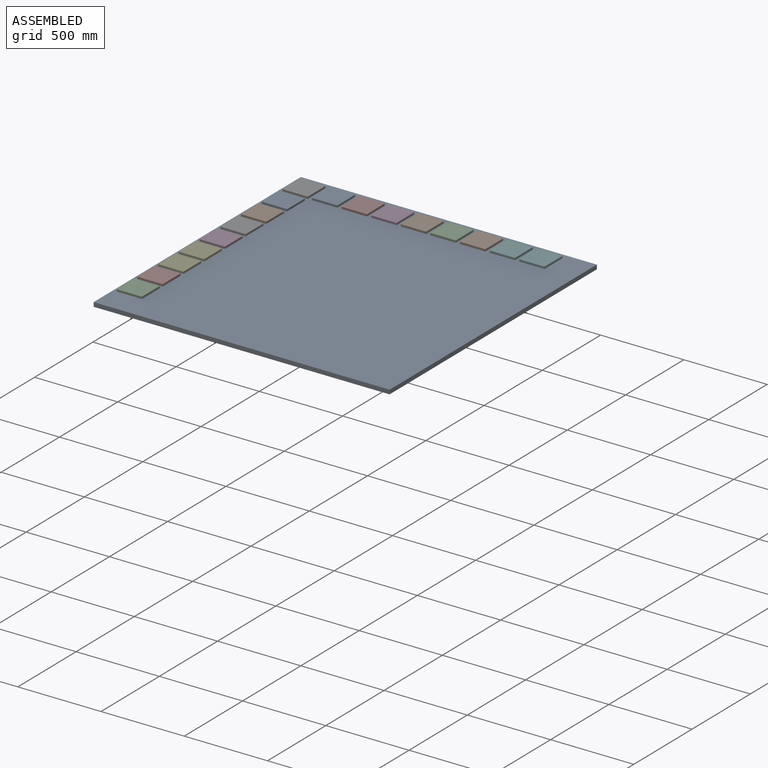
[diagram: assembled view]
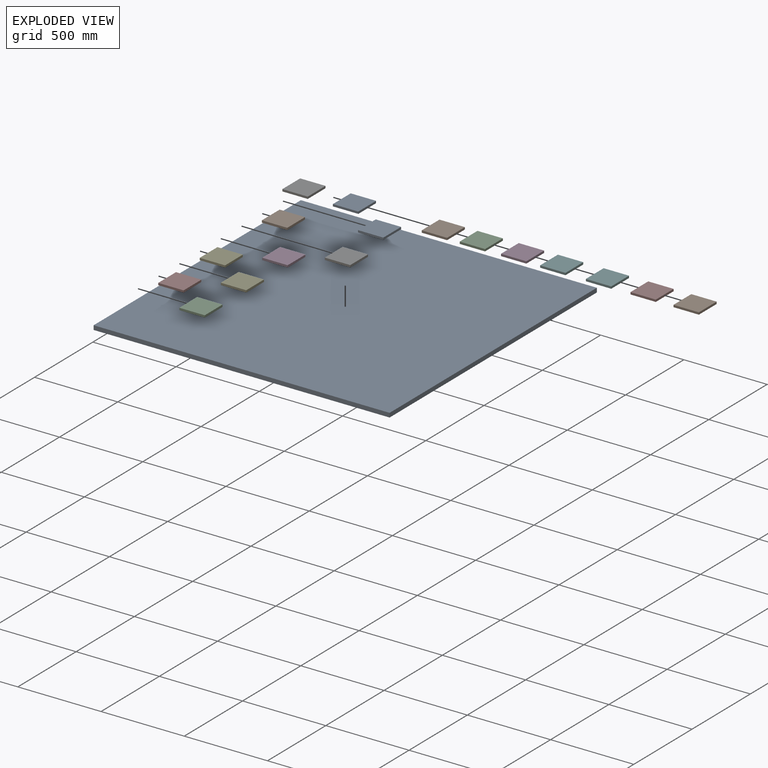
[diagram: exploded view]
GUIDED TOUR — MATED ASSEMBLY (Onshape document 28abea1aff2897cf7e7c4938, AutoMate assembly 28abea1aff2897cf7e7c4938_fbd6e8e1134ad09c63a7ca57_0e753900161d136d466df1c1_default)

This assembly has 18 components, labeled P0..P17 below (a component is one placed occurrence of a part; the same part can appear more than once), held together by 1 mate. A mate is a constraint between two components; its type names the relative motion it leaves free:
  PLANAR — leaves sliding in the plane through the listed point (normal = the listed direction) and rotation about that normal free.
Axis/direction vectors are unit vectors and 'through' points are millimeter coordinates, both in the assembly's world frame.

MATES
  1. PLANAR "Planar 1": P16 <-> P6, direction (0.000, 0.000, 1.000) through (-750.33, -47.35, 882.11) mm

ASSEMBLY ORDER
  1. P17 — the base component [order verified]
  2. P2 [order verified]
  3. P1 [order verified]
  4. P3 [order verified]
  5. P15 [order verified]
  6. P0 [order verified]
  7. P6 [order verified]
  8. P8 [order verified]
  9. P9 [order verified]
  10. P14 [order verified]
  11. P13 [order verified]
  12. P11 [order verified]
  13. P4 [order verified]
  14. P12 [order verified]
  15. P7 [order verified]
  16. P10 [order verified]
  17. P5 [order verified]
  18. P16 [order verified]
Order-tag legend:
  [order verified] — this step's position reverses a verified removal order: the component was checked to insert without passing through the ones already placed.

Of the 18 components, 18 carry the full construction recipe — the FeatureScript program that regenerates the part's solid from scratch; the rest are supplied as boundary geometry only.
Because this assembly has more than 12 components, the tour below covers the 12 most significant ones individually (every recipe-attached component first, then the largest by part volume), in assembly order; the remaining 6 are summarized together in a grouped section at the end.
Each toured component is shown spotlighted twice — in the assembled view, then in the exploded view, where a leader line traces a displaced component back to its assembled socket (saturated green if recipe-attached, orange if geometry-only; every other component desaturated gray) — followed by its recipe or geometry summary and the mates that hold it.
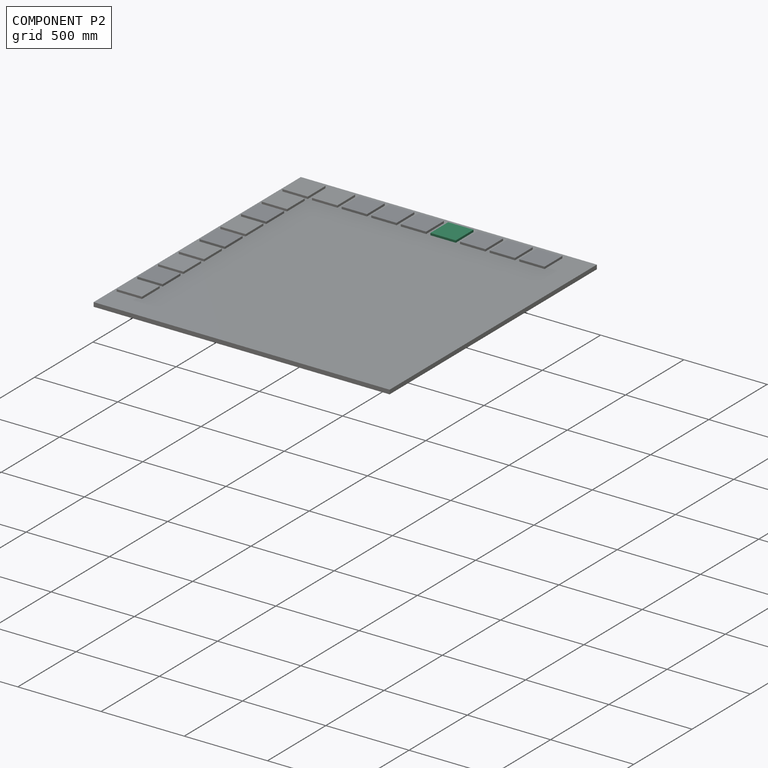
[diagram: component P2 — assembled]
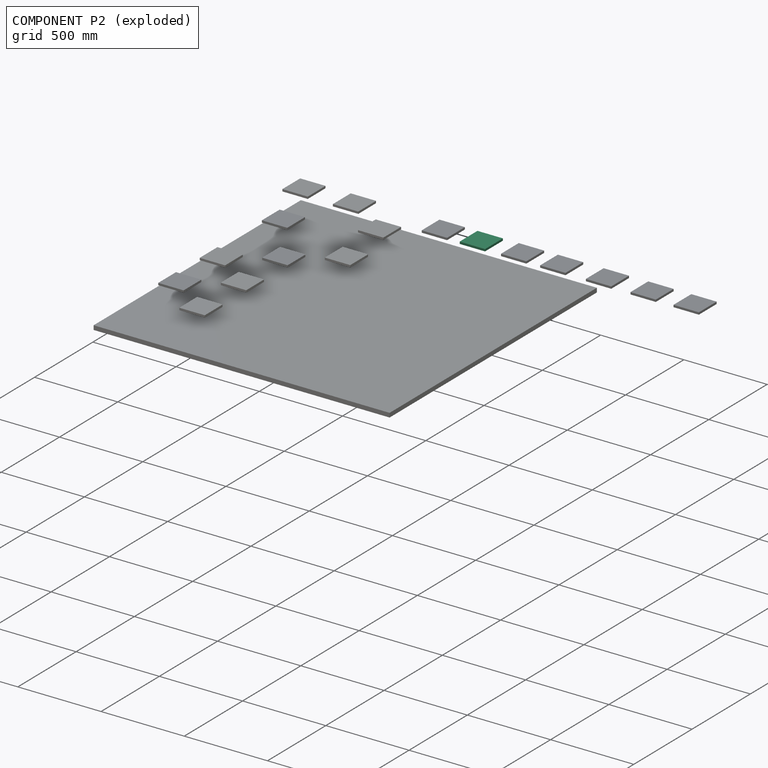
[diagram: component P2 — exploded]
COMPONENT P2 — same part as P0 (CADFS 00846062); its construction recipe is shown at P0.
Held by: no mates (free).
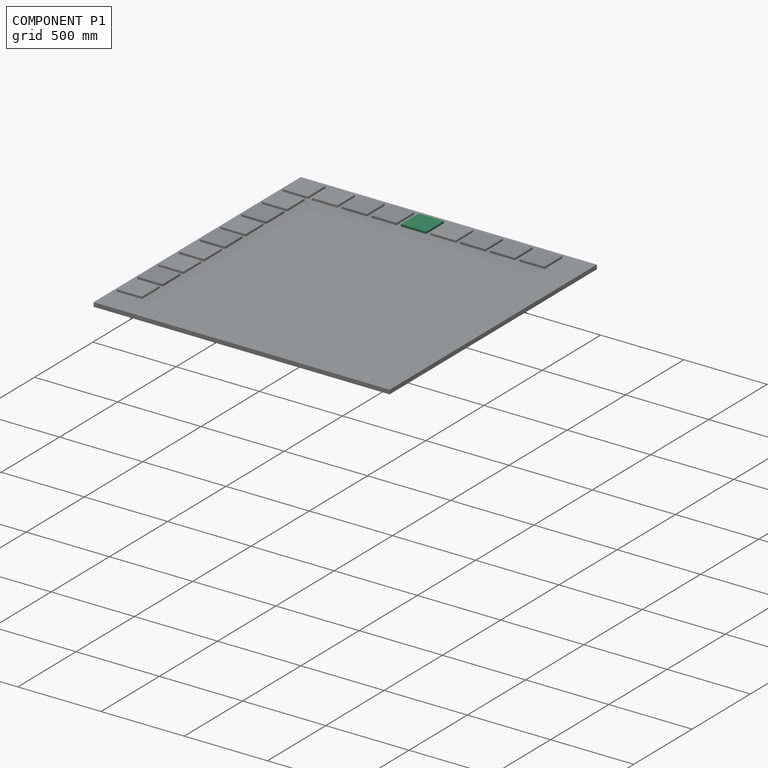
[diagram: component P1 — assembled]
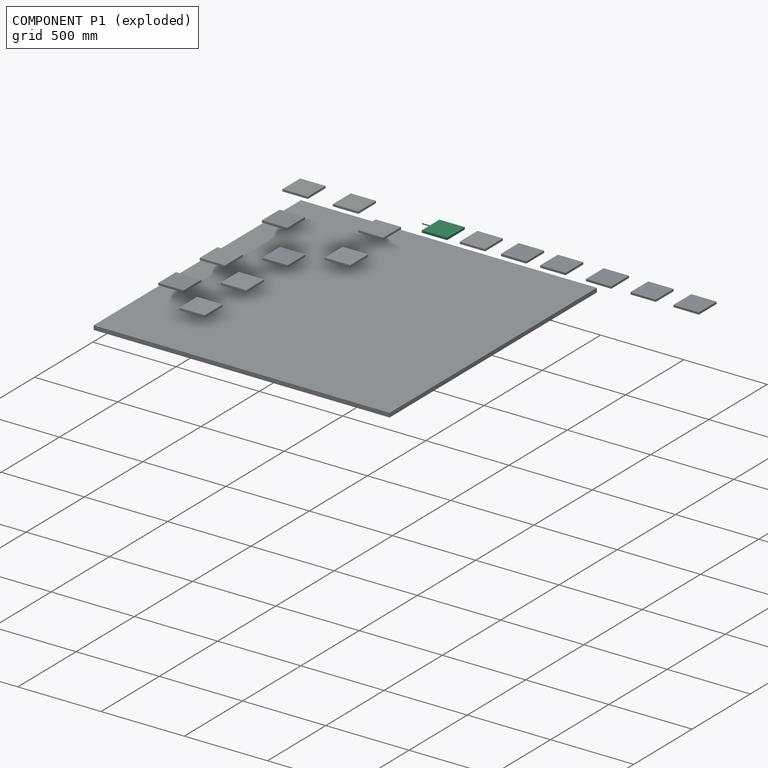
[diagram: component P1 — exploded]
COMPONENT P1 — same part as P0 (CADFS 00846062); its construction recipe is shown at P0.
Held by: no mates (free).
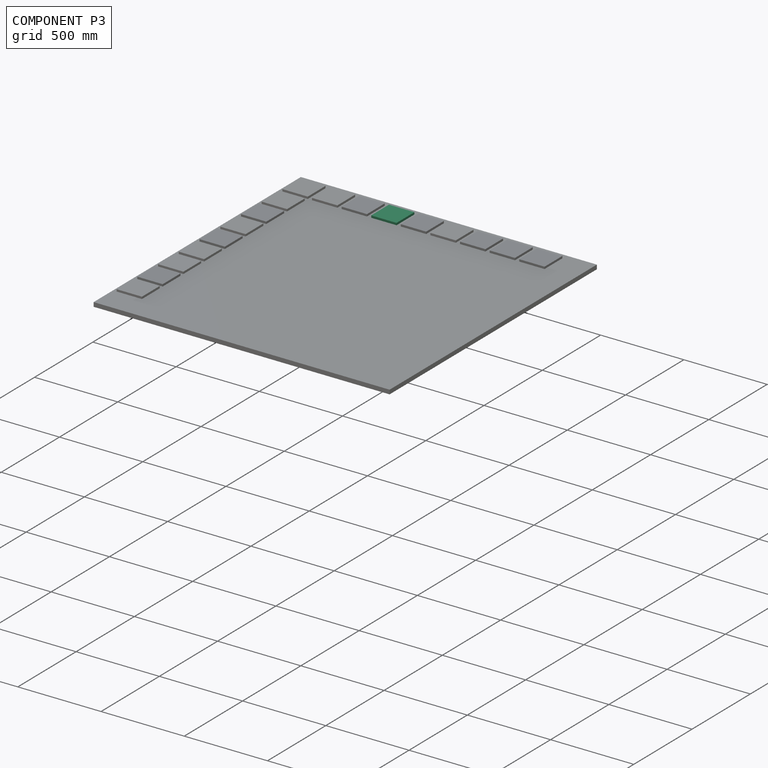
[diagram: component P3 — assembled]
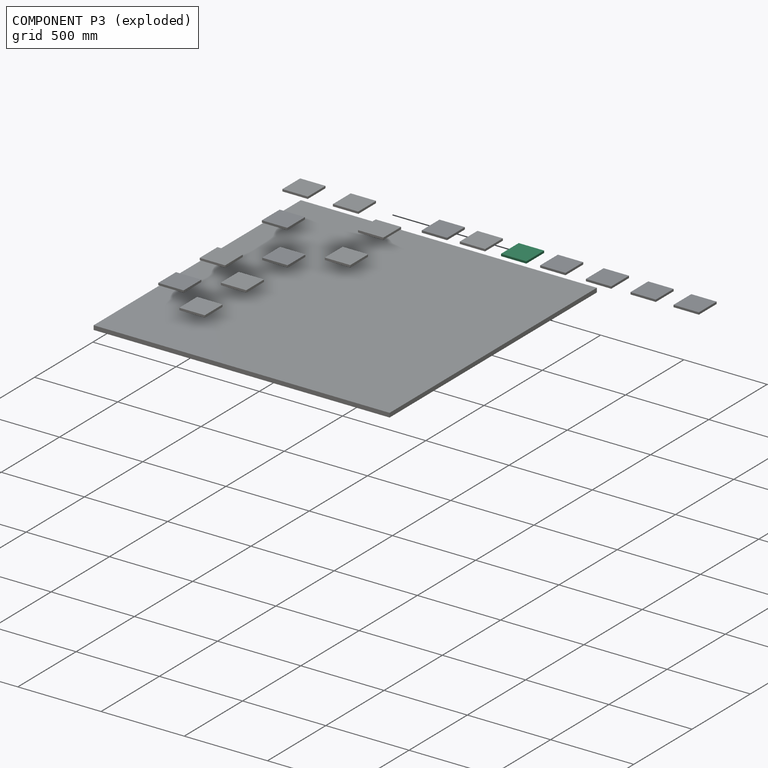
[diagram: component P3 — exploded]
COMPONENT P3 — same part as P0 (CADFS 00846062); its construction recipe is shown at P0.
Held by: no mates (free).
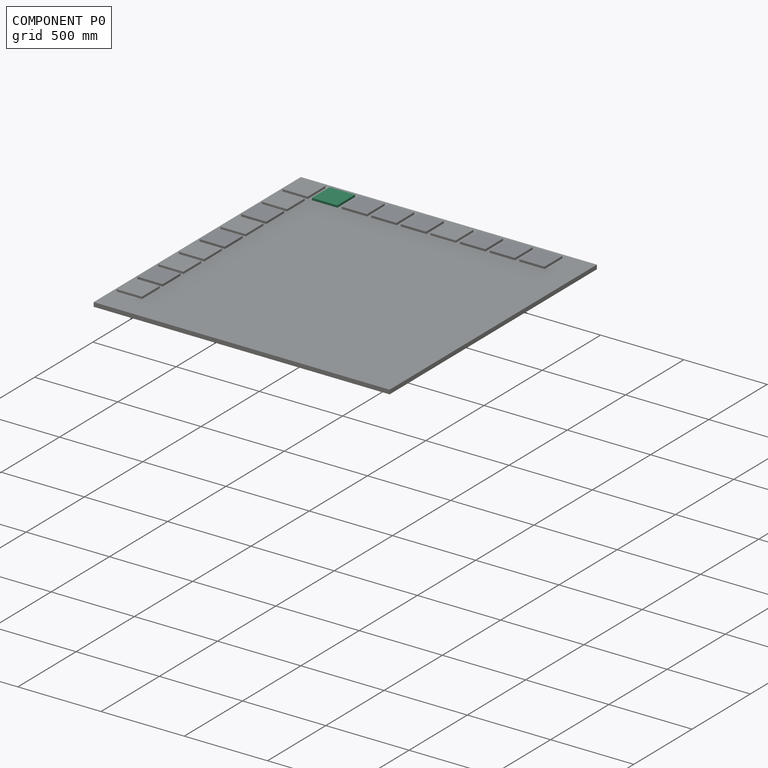
[diagram: component P0 — assembled]
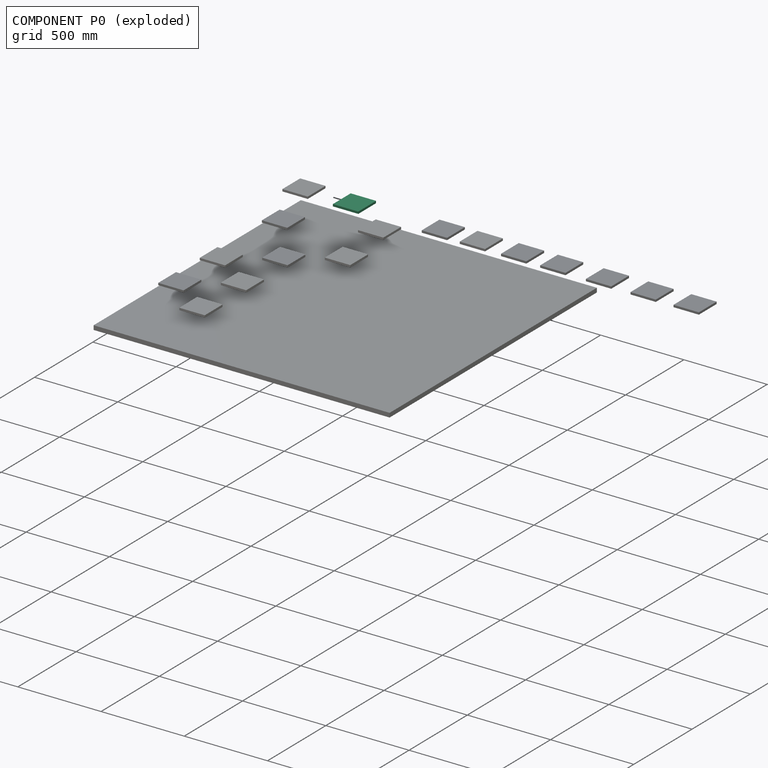
[diagram: component P0 — exploded]
COMPONENT P0 — recipe-attached (CADFS 00846062, mesh-verified: the recipe's output STEP matches this component's geometry to below the mesh-comparison resolution (tessellation chordal tolerance ~0.324 mm)).
Held by: no mates (free).
Construction recipe (FeatureScript — the CAD program that rebuilds this solid; sketch coordinates are in the units given by the * unit suffixes, e.g. mm):

FeatureScript 1511;
import(path : "onshape/std/geometry.fs", version : "1511.0");
import(path : "onshape/std/common.fs", version : "1511.0");
const mm = millimeter;
const VERTEX = EntityType.VERTEX;
const EDGE = EntityType.EDGE;
const FACE = EntityType.FACE;
const BODY = EntityType.BODY;
function v(x, y){return vector(x, y);}
function OD(order){return orderDisambiguation(order);}
function OSD(set){return originalSetDisambiguation(set);}
function TD(topology){return topologyDisambiguation(topology);}
function TDD(query){return trueDependencyDisambiguation(query);}
function sQuery(a, b, c) {return sketchEntityQuery(a, b, c);}

annotation { "Feature Type Name" : "Feature", "Feature Type Description" : "" }
export const myFeature = defineFeature(function(context is Context, id is Id, definition is map)
    precondition{}
    {
        {
            var Q0;
            Q0=qCreatedBy(makeId("Top.planeOp"),FACE);
            var sketch = newSketch(context, id + "F0", { "sketchPlane" : qUnion([Q0])});
            skLineSegment(sketch, "E0.bottom", {"start": v(76.2, -76.2) * mm, "end": v(-76.2, -76.2) * mm});
            skLineSegment(sketch, "E0.top", {"start": v(76.2, 76.2) * mm, "end": v(-76.2, 76.2) * mm});
            skLineSegment(sketch, "E0.left", {"start": v(76.2, -76.2) * mm, "end": v(76.2, 76.2) * mm});
            skLineSegment(sketch, "E0.right", {"start": v(-76.2, -76.2) * mm, "end": v(-76.2, 76.2) * mm});
            skPoint(sketch, "E0.middle", {"position": v(0, 0) * mm});
            skSolve(sketch);
        }
        {
            var Q0;
            Q0 = qSketchRegion(id + "F0", true);
            extrude(context, id + "F1", {"entities" : qUnion([Q0]), "depth" : 12.7 * mm, "offsetDistance" : 25.4 * mm});
        }
    });
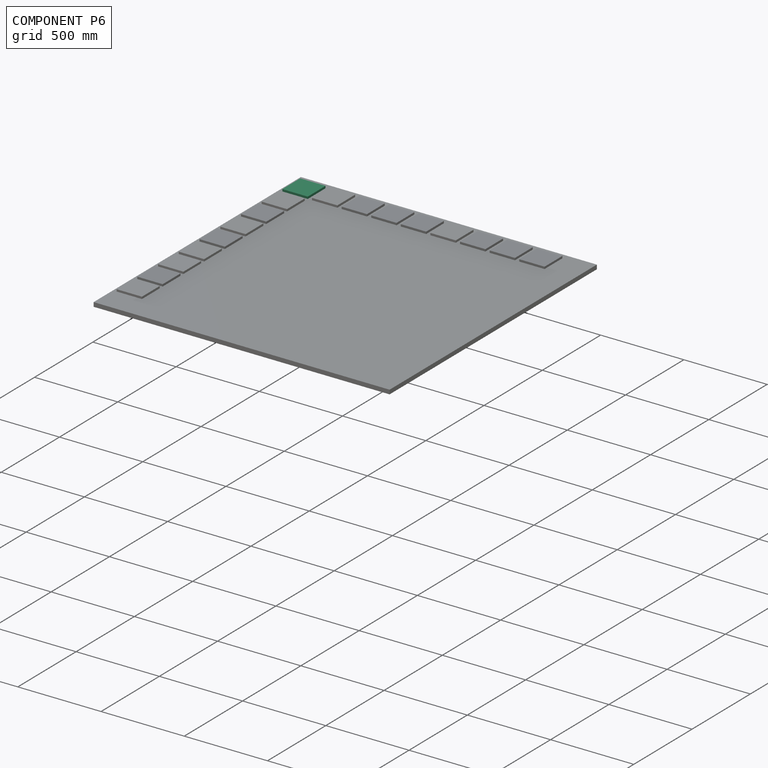
[diagram: component P6 — assembled]
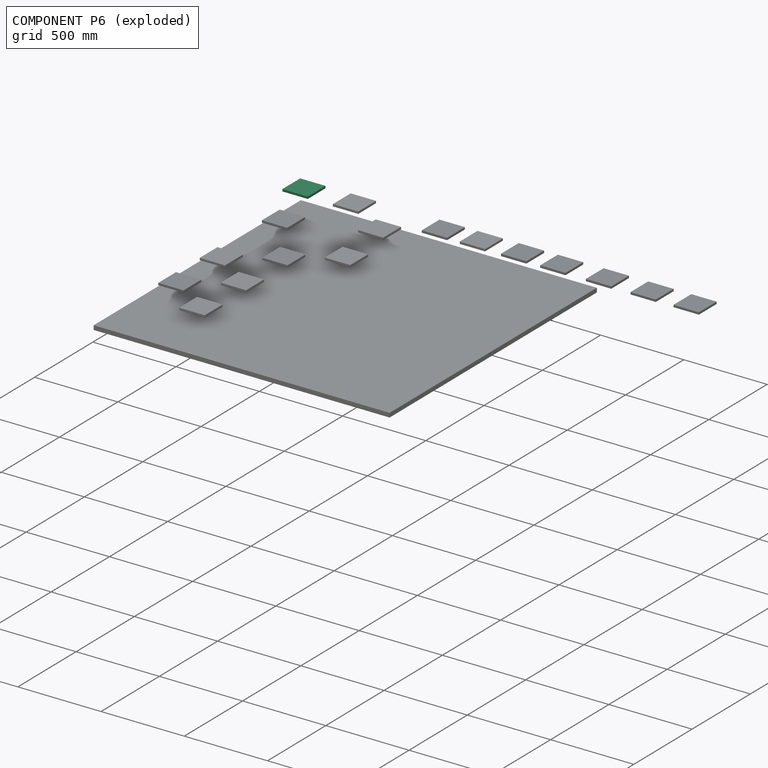
[diagram: component P6 — exploded]
COMPONENT P6 — same part as P0 (CADFS 00846062); its construction recipe is shown at P0.
Held by: PLANAR mate "Planar 1" to P16.
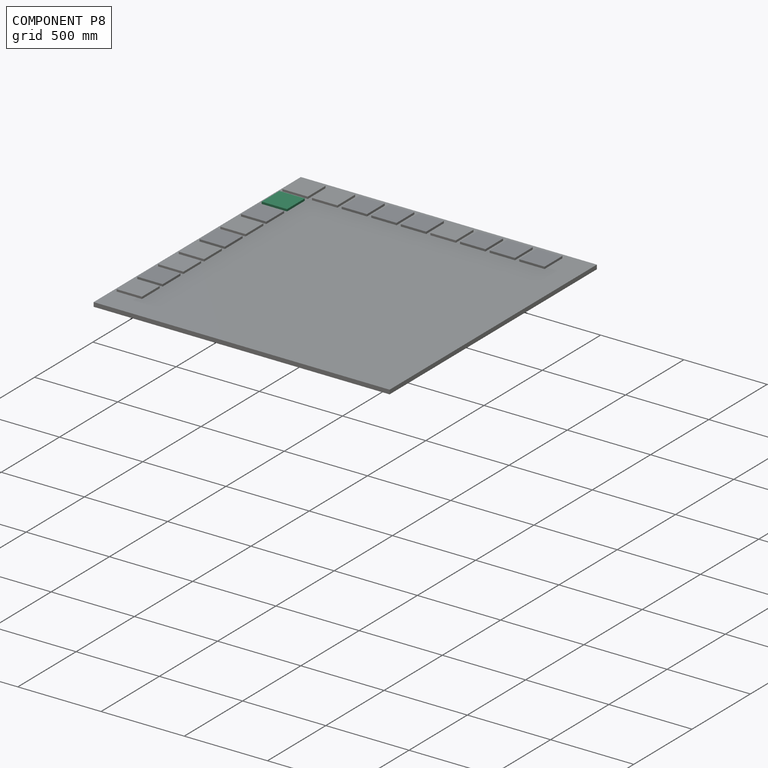
[diagram: component P8 — assembled]
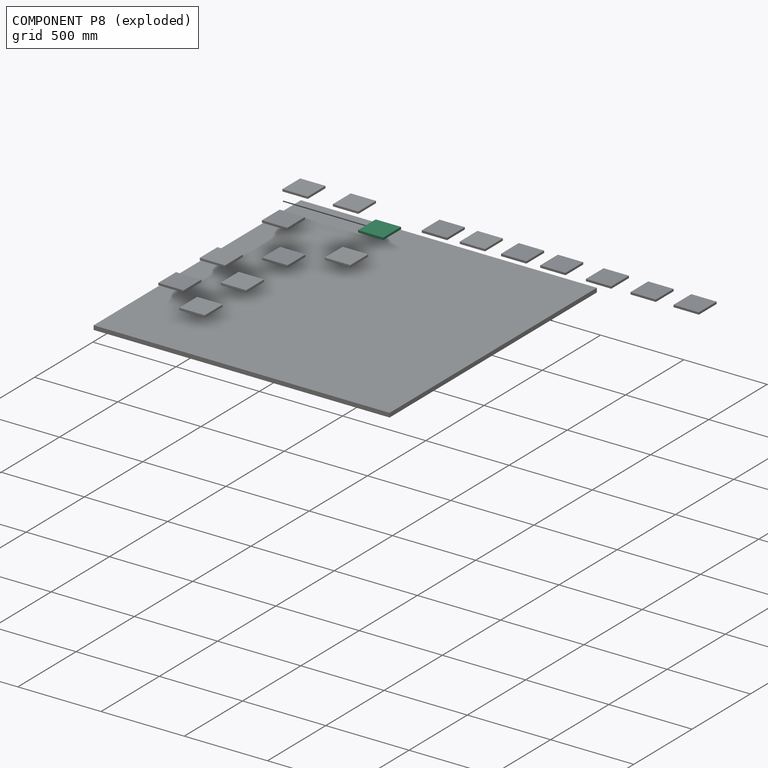
[diagram: component P8 — exploded]
COMPONENT P8 — same part as P0 (CADFS 00846062); its construction recipe is shown at P0.
Held by: no mates (free).
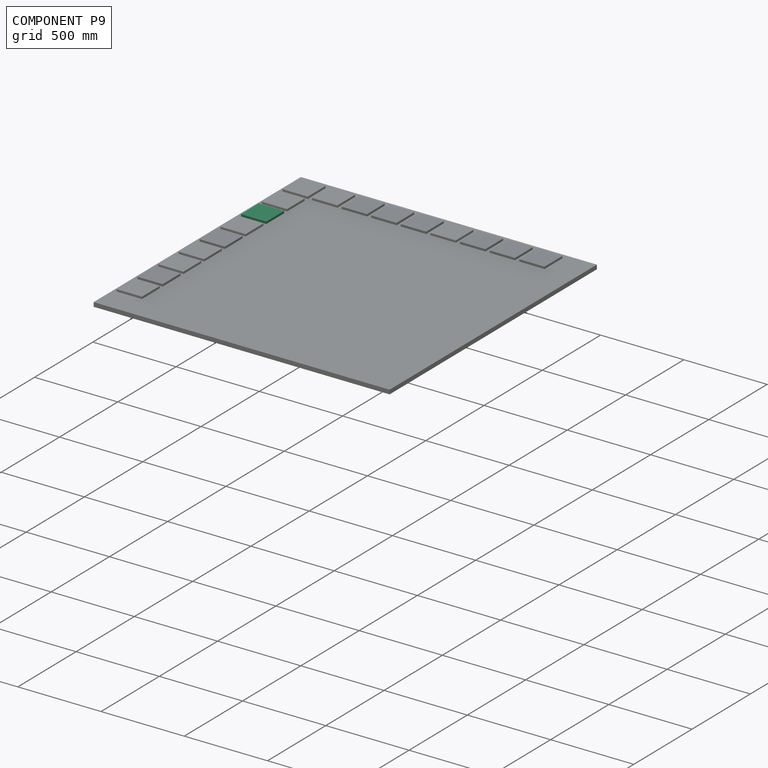
[diagram: component P9 — assembled]
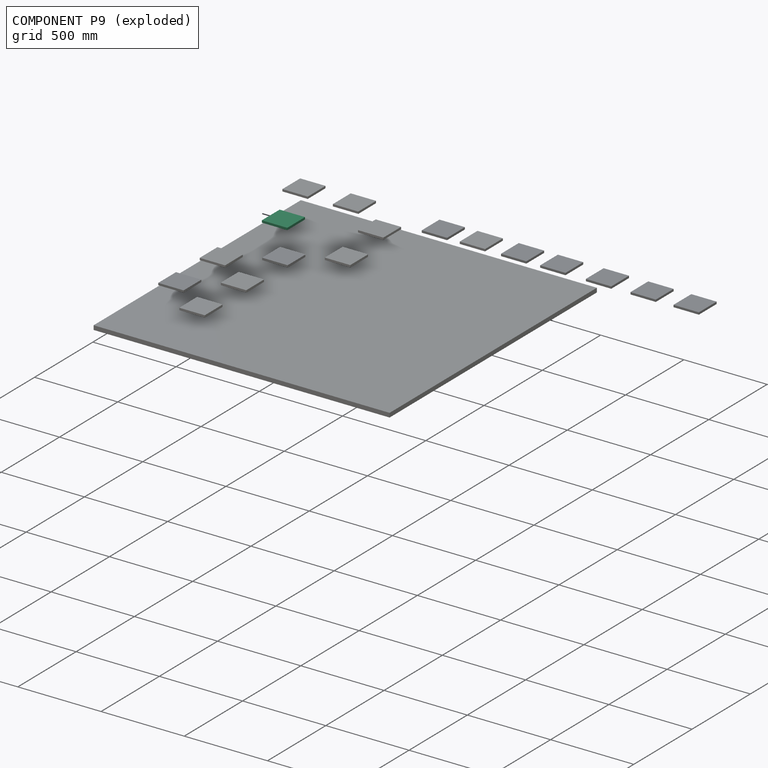
[diagram: component P9 — exploded]
COMPONENT P9 — same part as P0 (CADFS 00846062); its construction recipe is shown at P0.
Held by: no mates (free).
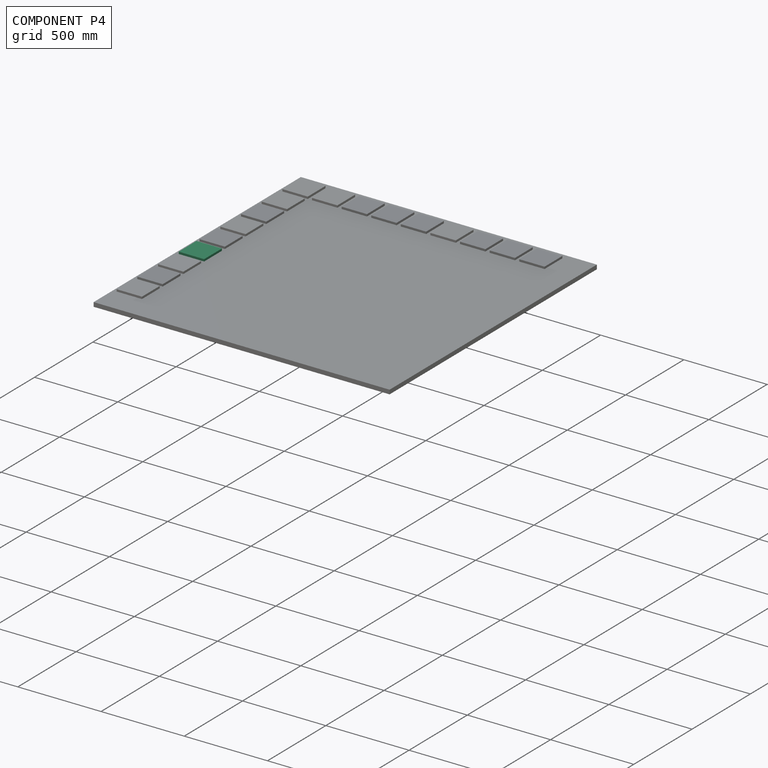
[diagram: component P4 — assembled]
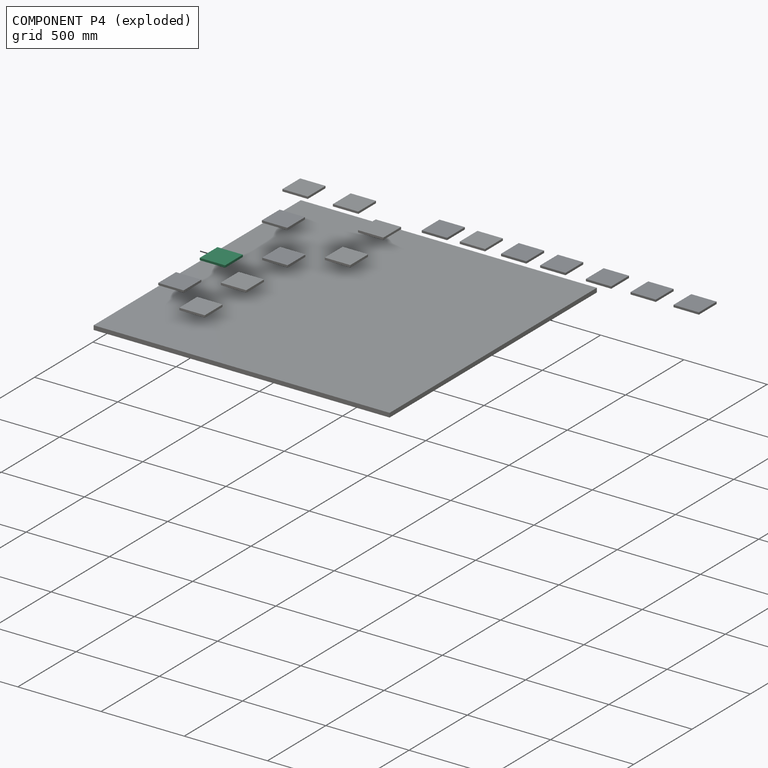
[diagram: component P4 — exploded]
COMPONENT P4 — same part as P0 (CADFS 00846062); its construction recipe is shown at P0.
Held by: no mates (free).
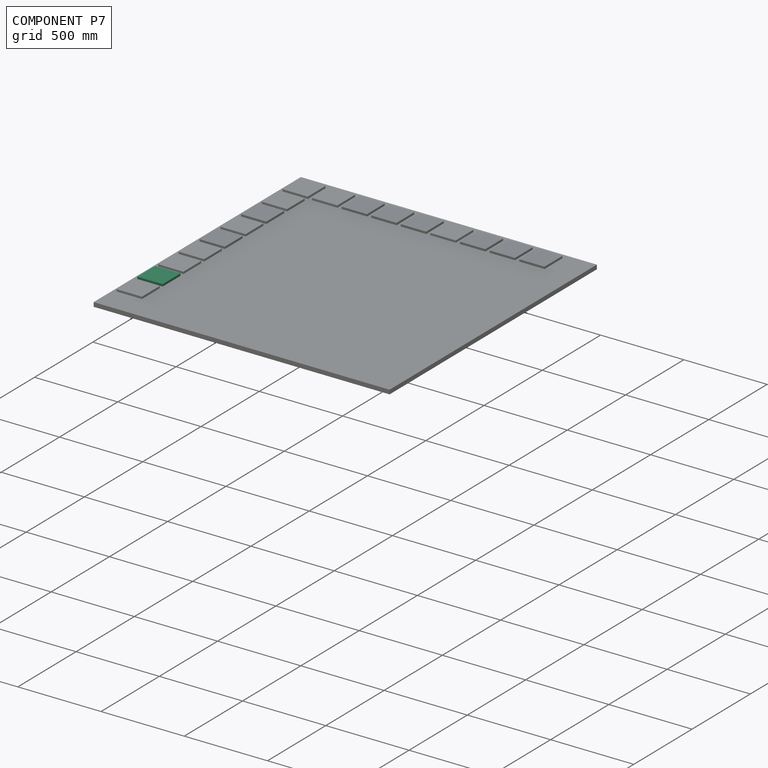
[diagram: component P7 — assembled]
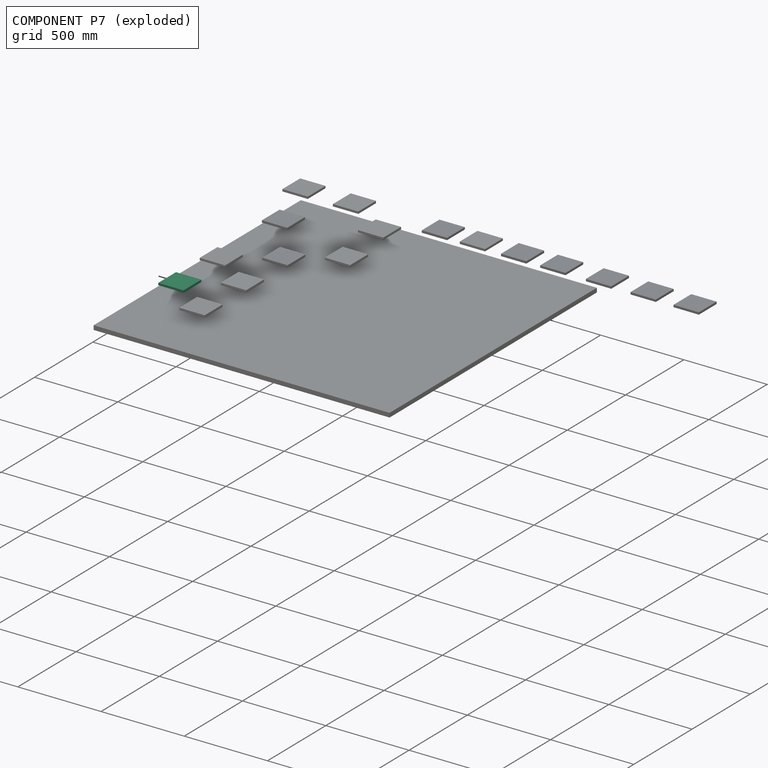
[diagram: component P7 — exploded]
COMPONENT P7 — same part as P0 (CADFS 00846062); its construction recipe is shown at P0.
Held by: no mates (free).
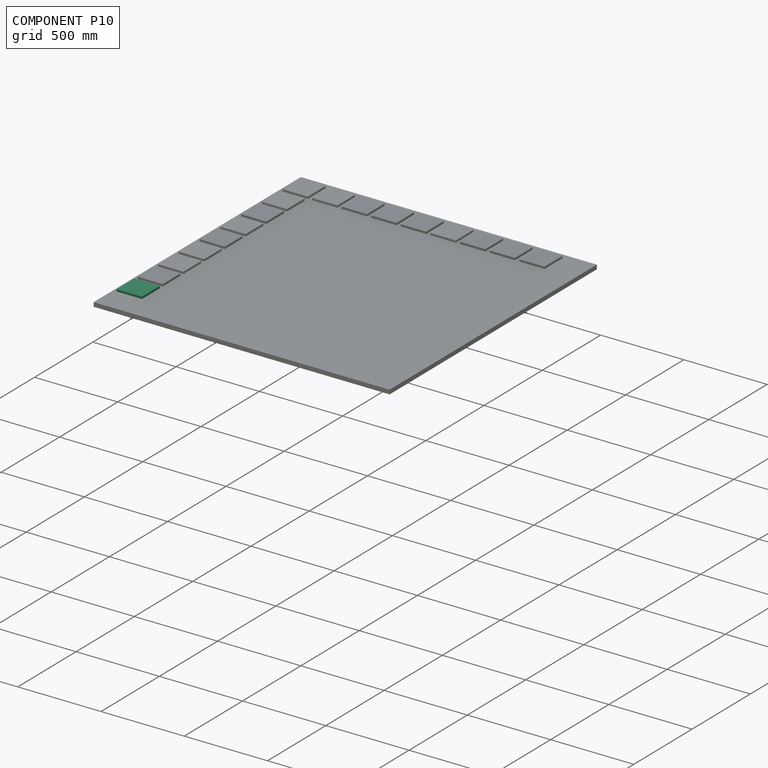
[diagram: component P10 — assembled]
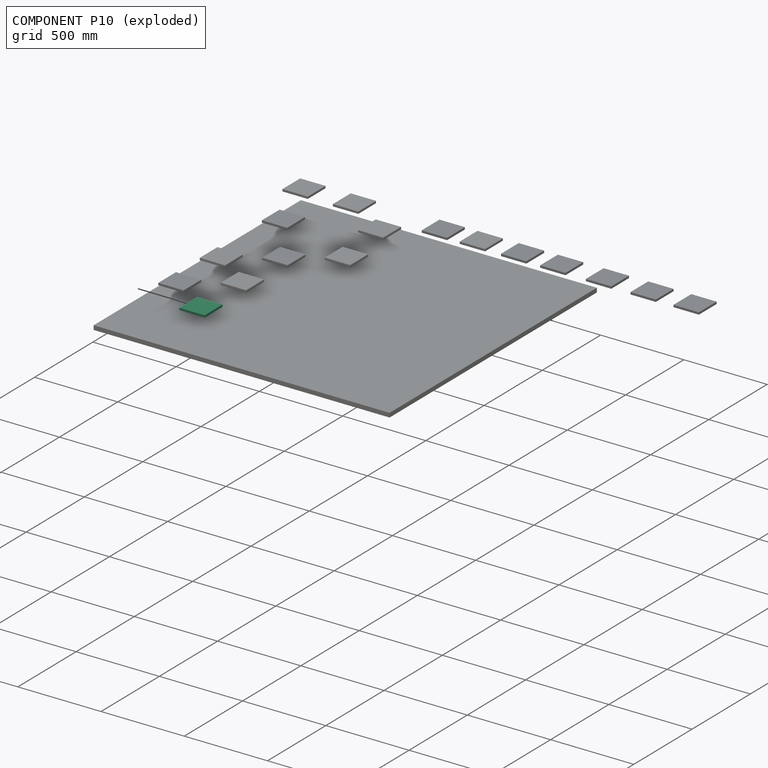
[diagram: component P10 — exploded]
COMPONENT P10 — same part as P0 (CADFS 00846062); its construction recipe is shown at P0.
Held by: no mates (free).
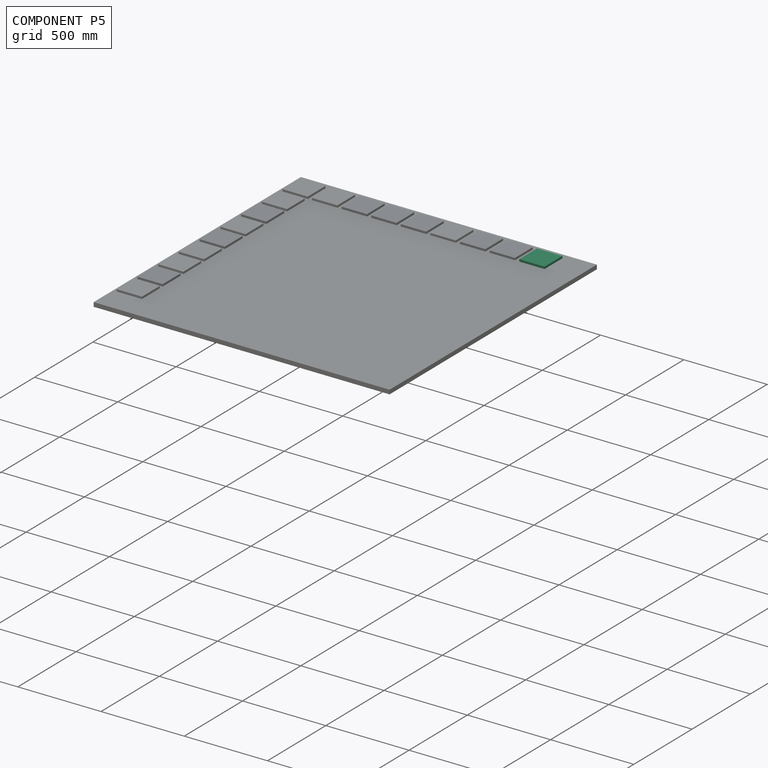
[diagram: component P5 — assembled]
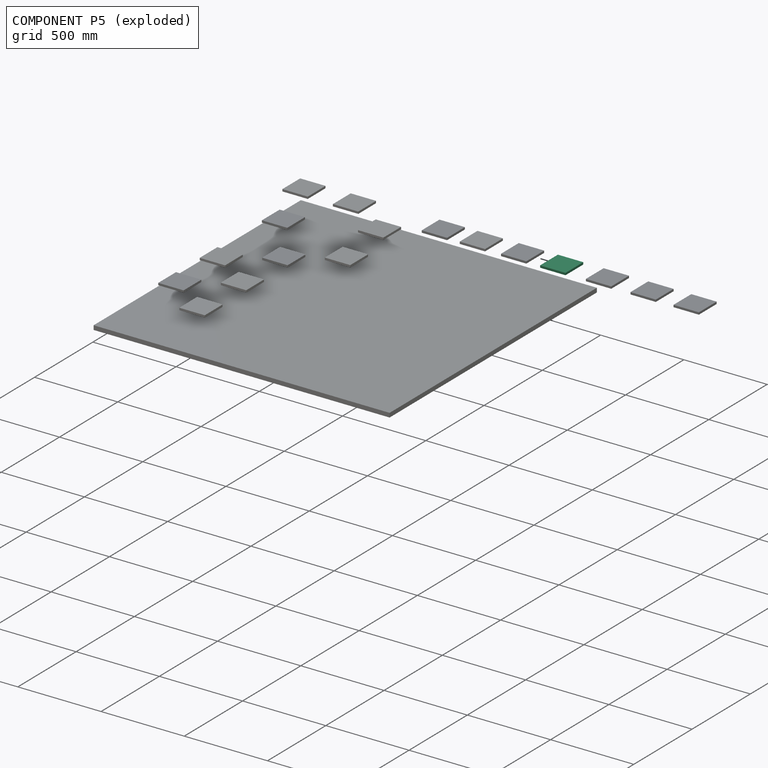
[diagram: component P5 — exploded]
COMPONENT P5 — same part as P0 (CADFS 00846062); its construction recipe is shown at P0.
Held by: no mates (free).
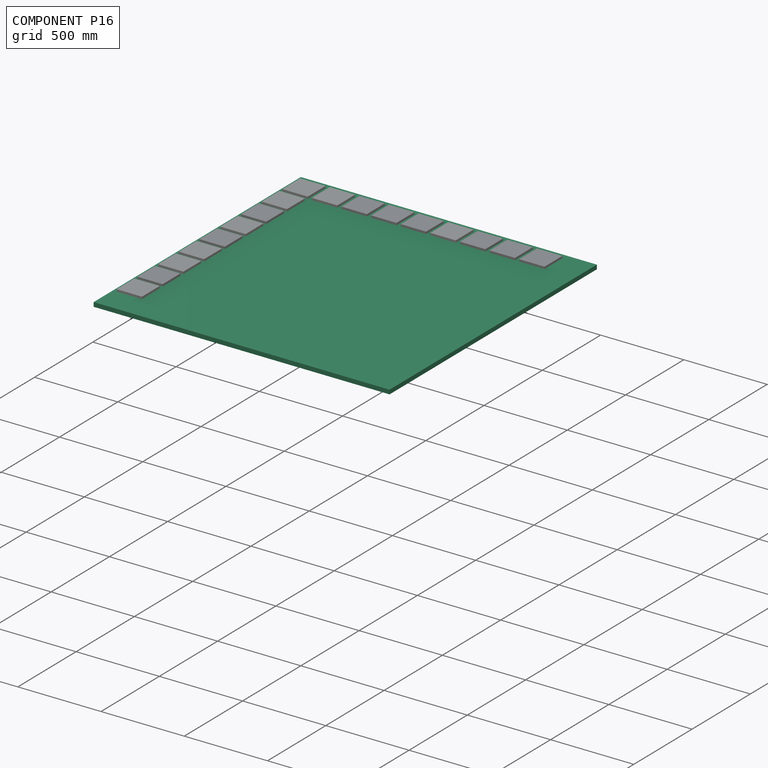
[diagram: component P16 — assembled]
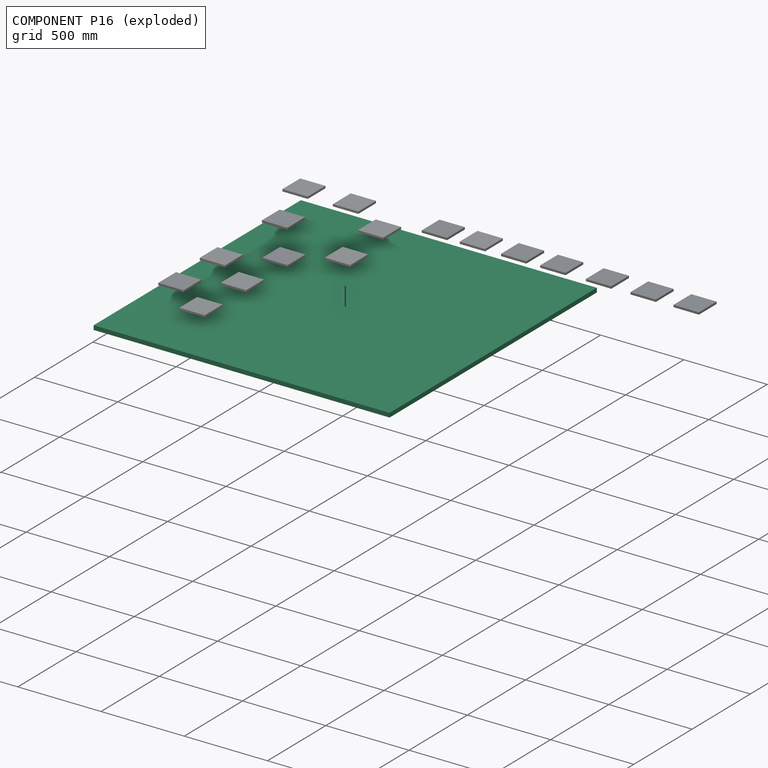
[diagram: component P16 — exploded]
COMPONENT P16 — recipe-attached (CADFS 00846061, mesh-verified: the recipe's output STEP matches this component's geometry to below the mesh-comparison resolution (tessellation chordal tolerance ~3.77 mm)).
Held by: PLANAR mate "Planar 1" to P6.
Construction recipe (FeatureScript — the CAD program that rebuilds this solid; sketch coordinates are in the units given by the * unit suffixes, e.g. mm):

FeatureScript 1511;
import(path : "onshape/std/geometry.fs", version : "1511.0");
import(path : "onshape/std/common.fs", version : "1511.0");
const mm = millimeter;
const VERTEX = EntityType.VERTEX;
const EDGE = EntityType.EDGE;
const FACE = EntityType.FACE;
const BODY = EntityType.BODY;
function v(x, y){return vector(x, y);}
function OD(order){return orderDisambiguation(order);}
function OSD(set){return originalSetDisambiguation(set);}
function TD(topology){return topologyDisambiguation(topology);}
function TDD(query){return trueDependencyDisambiguation(query);}
function sQuery(a, b, c) {return sketchEntityQuery(a, b, c);}

annotation { "Feature Type Name" : "Feature", "Feature Type Description" : "" }
export const myFeature = defineFeature(function(context is Context, id is Id, definition is map)
    precondition{}
    {
        {
            var Q0;
            Q0=qCreatedBy(makeId("Top.planeOp"),FACE);
            var sketch = newSketch(context, id + "F0", { "sketchPlane" : qUnion([Q0])});
            skLineSegment(sketch, "E0.bottom", {"start": v(889, -889) * mm, "end": v(-889, -889) * mm});
            skLineSegment(sketch, "E0.top", {"start": v(889, 889) * mm, "end": v(-889, 889) * mm});
            skLineSegment(sketch, "E0.left", {"start": v(889, -889) * mm, "end": v(889, 889) * mm});
            skLineSegment(sketch, "E0.right", {"start": v(-889, -889) * mm, "end": v(-889, 889) * mm});
            skPoint(sketch, "E0.middle", {"position": v(0, 0) * mm});
            skSolve(sketch);
        }
        {
            var Q0;
            Q0 = qSketchRegion(id + "F0", true);
            extrude(context, id + "F1", {"entities" : qUnion([Q0]), "depth" : 25.4 * mm, "offsetDistance" : 25.4 * mm});
        }
    });
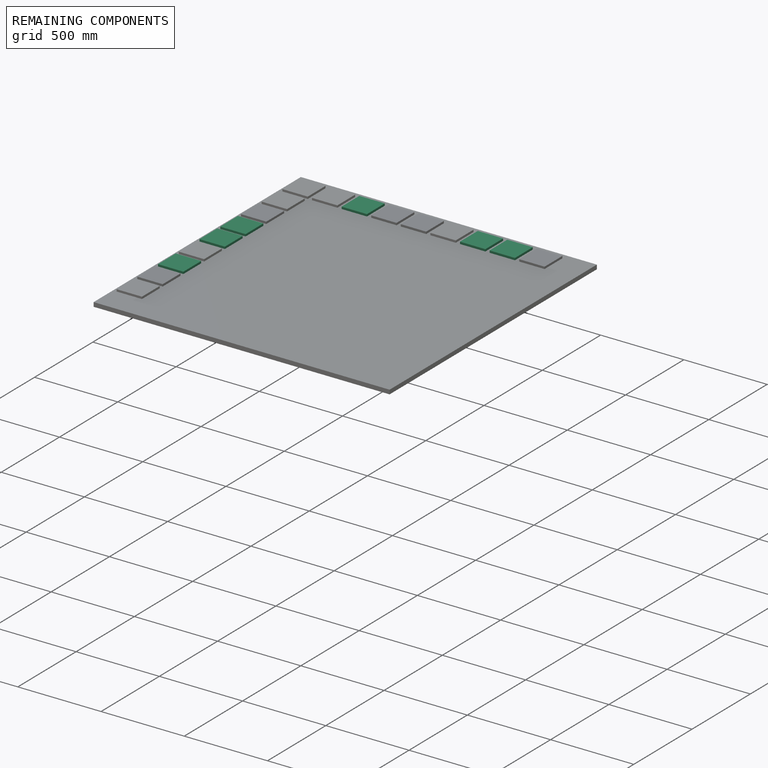
[diagram: remaining components — assembled]
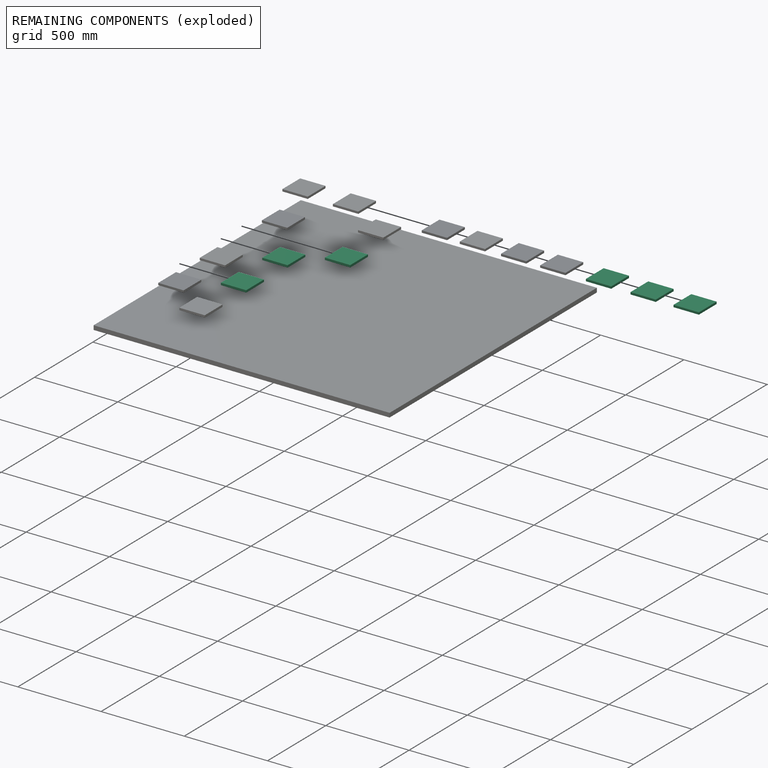
[diagram: remaining components — exploded]
REMAINING COMPONENTS (grouped) — the 6 components below fall outside the per-component tour by the significance rule stated above; both spotlight views highlight the whole group.
  P17: bounding box 152.4 x 152.4 x 12.7 mm, volume 294967 mm^3. Recipe-attached (CADFS 00846062; recipe not printed under the significance rule). Held by: no mates (free).
  P15: bounding box 152.4 x 152.4 x 12.7 mm, volume 294967 mm^3. Recipe-attached (CADFS 00846062; recipe not printed under the significance rule). Held by: no mates (free).
  P14: bounding box 152.4 x 152.4 x 12.7 mm, volume 294967 mm^3. Recipe-attached (CADFS 00846062; recipe not printed under the significance rule). Held by: no mates (free).
  P13: bounding box 152.4 x 152.4 x 12.7 mm, volume 294967 mm^3. Recipe-attached (CADFS 00846062; recipe not printed under the significance rule). Held by: no mates (free).
  P11: bounding box 152.4 x 152.4 x 12.7 mm, volume 294967 mm^3. Recipe-attached (CADFS 00846062; recipe not printed under the significance rule). Held by: no mates (free).
  P12: bounding box 152.4 x 152.4 x 12.7 mm, volume 294967 mm^3. Recipe-attached (CADFS 00846062; recipe not printed under the significance rule). Held by: no mates (free).
PROVENANCE & LICENSES
Assembly (occurrences, transforms, mates, per-part STEP geometry): AutoMate dataset, Zenodo record 7776208, CC0.
Construction recipes: CADFS (HuggingFace VladPyatov/CADFS, CC-BY-4.0, layered over the ABC dataset), FeatureScript reconstruction programs keyed by ABC model id.
Join: ABC meta listings map ABC model id -> Onshape documentId; within a shared document, parts are matched by geometric signature (bounding-box dims + volume at 0.1% relative tolerance, exact B-rep face/solid counts).
Verification: 18 of this assembly's 18 components carry a recipe attachment, and every attachment is mesh-verified: the CADFS STEP and the AutoMate member STEP were compared as meshes in their shared local frame (symmetric sampled-point-to-mesh distance); worst across the 18 attachments: below the mesh-comparison resolution (tessellation chordal tolerance ~3.77 mm) on a 2515 mm part.
Renders: orthographic iso camera (az 35 / el 25); the floor grid conveys scale (grid pitch printed in each image; no ruler). In the exploded view each component is displaced by its stored offset vector: the offsets alone carry the explosion direction (mate normal/axis signs are not orientation cues and do not encode it), and separation distances are assigned per mate-chain, not proportionally to assembly-order depth.
